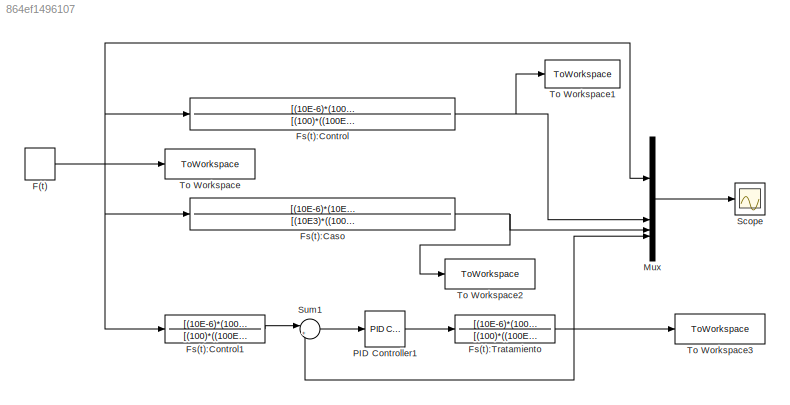
MODEL slx_864ef1496107
KIND model
CONFIG AbsTol = auto
CONFIG EnableMultiTasking = off
CONFIG FixedStep = auto
CONFIG MaxStep = auto
CONFIG MinStep = auto
CONFIG RelTol = 1e-3
CONFIG SampleTimeConstraint = Unconstrained
CONFIG SolverName = VariableStepAuto
CONFIG StartTime = 0.0
CONFIG StopTime = 10.0
BLOCK [DiscretePulseGenerator] F(t)
  Period = 10
  PhaseDelay = 1
  PulseType = Time based
  PulseWidth = 10
BLOCK [TransferFcn] Fs(t):Caso
  Denominator = [(10E3)*((100E-6)+(10E-6)),1]
  Numerator = [(10E-6)*(10E3),+1-0.25]
BLOCK [TransferFcn] Fs(t):Control
  Denominator = [(100)*((100E-6)+(10E-6)),1]
  Numerator = [(10E-6)*(100),+1-0.25]
BLOCK [TransferFcn] Fs(t):Control1
  Denominator = [(100)*((100E-6)+(10E-6)),1]
  Numerator = [(10E-6)*(100),+1-0.25]
BLOCK [TransferFcn] Fs(t):Tratamiento
  Denominator = [(100)*((100E-6)+(10E-6)),1]
  Numerator = [(10E-6)*(100),+1-0.25]
BLOCK [Mux] Mux
  DisplayOption = bar
BLOCK [Reference] PID Controller1  REF=slpidlib/PID Controller
  LibrarySourceBlock = simulink/Continuous/PID Controller
  SourceBlock = slpidlib/PID Controller
  SourceType = PID 1dof
BLOCK [Scope] Scope
  ActiveDisplayYMaximum = 1.25648
  ActiveDisplayYMinimum = -0.33016
  ContainerLayout = {"WindowBounds":[885,1396,714,732]}
  Floating = off
  GraphicalSettings = {"Style":{"BackgroundColor":[0,0,0],"AxesColor":[0,0,0],"LabelsColor":[1,1,1],"PreserveColors":false,"Visible":[true,true,true,true],"LineStyle":["-","-","-","-"],"LineWidth":[1.5,1.5,1.5,1.5],"BarWidth":[0.9,0.9,0.9,0.9],"LineColor":[[0,1,1],[0,1,0],[1,1,0],[1,0,0]],"LineFaceAlpha":[1,1,1,1],"LineEdgeAlpha":[1,1,1,1],"Marker":["none","none","none","none"],"FontSize":8.5,"LineTrueColor":[[0,1,1],[...<+1964ch>
  MultipleDisplayCache = [{"MaxYLimMag":1.25648,"MaxYLimReal":1.25648,"MinYLimMag":0,"MinYLimReal":-0.33016,"PlotAsMagnitudePhase":false,"ShowGrid":true,"ShowLegend":true,"Title":"%<SignalLabel>","YLabel":""}]
  NumInputPorts = 1
  ShowLegend = on
  Visible = on
  WasSavedAsWebScope = on
  WindowPosition = [885.000000,1.000000,716.000000,735.000000,]
BLOCK [Sum] Sum1
  Inputs = |+-
BLOCK [ToWorkspace] To Workspace
  FixptAsFi = on
  MaxDataPoints = inf
  SampleTime = -1
  VariableName = F
BLOCK [ToWorkspace] To Workspace1
  FixptAsFi = on
  MaxDataPoints = inf
  SampleTime = -1
  VariableName = Fs1
BLOCK [ToWorkspace] To Workspace2
  FixptAsFi = on
  MaxDataPoints = inf
  SampleTime = -1
  VariableName = Fs2
BLOCK [ToWorkspace] To Workspace3
  FixptAsFi = on
  MaxDataPoints = inf
  SampleTime = -1
  VariableName = Fs3
NET F(t):1 -> Fs(t):Caso:1, Fs(t):Control1:1, Fs(t):Control:1, Mux:1, To Workspace:1
NET Fs(t):Caso:1 -> Mux:3, To Workspace2:1
LINE Fs(t):Control1:1 -> Sum1:1
NET Fs(t):Control:1 -> Mux:2, To Workspace1:1
NET Fs(t):Tratamiento:1 -> Mux:4, Sum1:2, To Workspace3:1
LINE Mux:1 -> Scope:1
LINE PID Controller1:1 -> Fs(t):Tratamiento:1
LINE Sum1:1 -> PID Controller1:1
note: NET lines group one-source signal fan-out (src -> all destinations, sorted); 1:1 wires keep LINE
